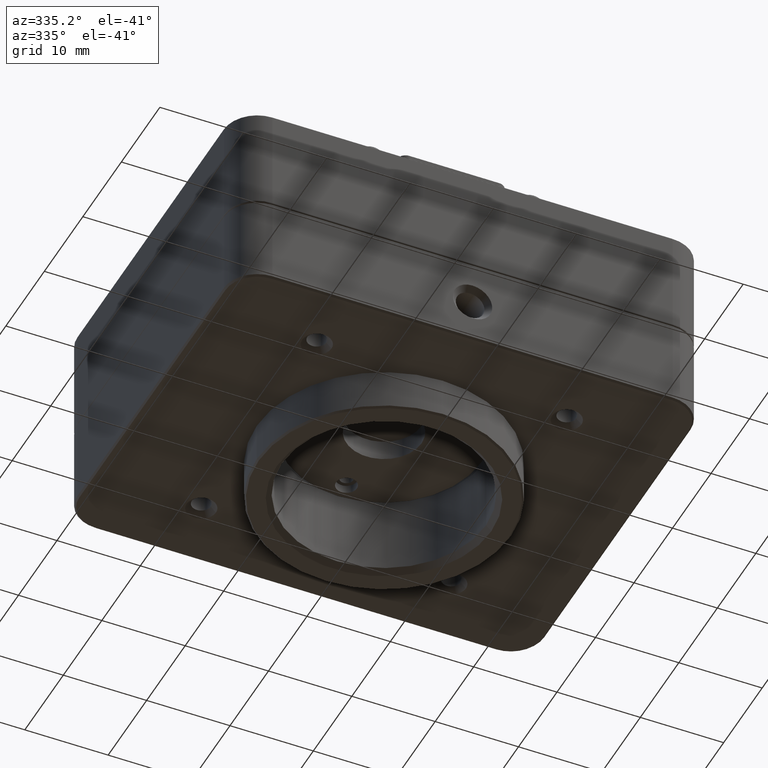
[diagram: clean part render]
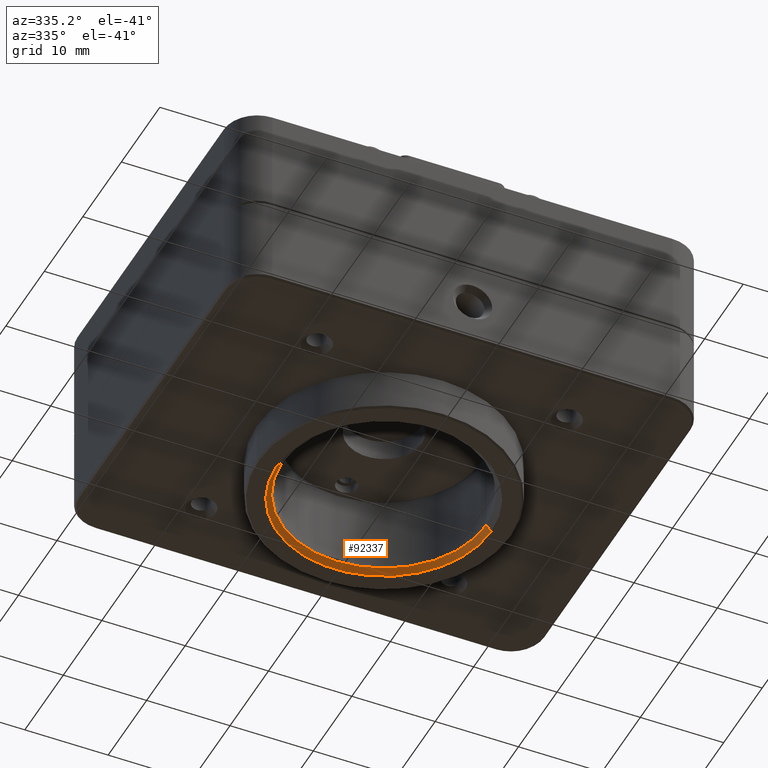
[diagram: same view with one face highlighted and labeled with its STEP entity id]
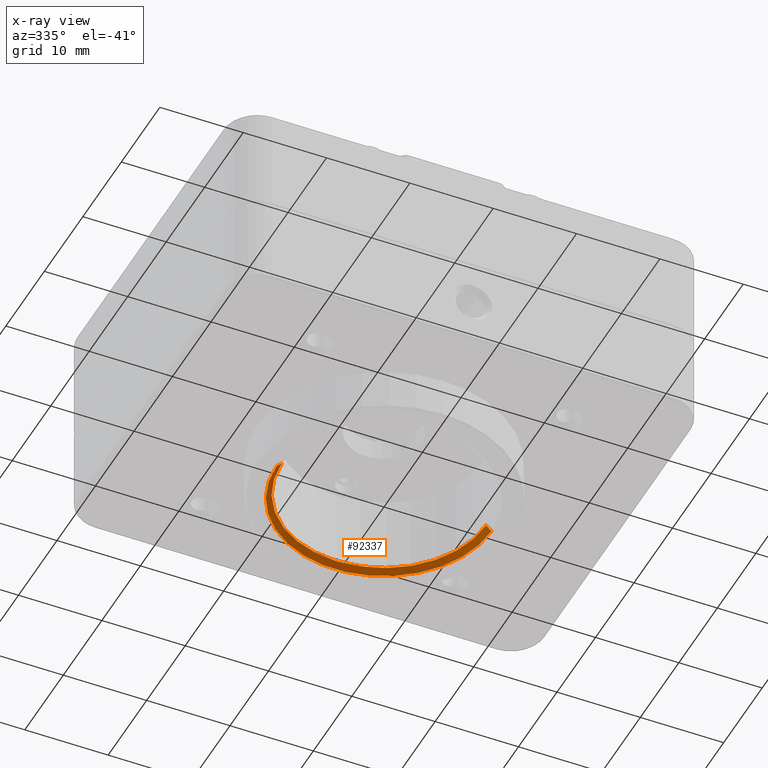
[diagram: x-ray of the same camera — body ghosted, the highlighted face saturated]
A machine part, auxiliary view. The second image highlights one B-rep face of the part: STEP entity #92337.
The next image is the same camera in x-ray: the body ghosted, the highlighted face saturated — about 0% of this face is hidden behind the body in this view.
In plain terms, the highlighted conical surface has half-angle 45 deg.
Its self-contained STEP definition (entity closure, byte-faithful):
#7618 = CIRCLE ( 'NONE', #52536, 12.88415000000000200 ) ;
#8780 = DIRECTION ( 'NONE',  ( 0.7071067811865474600, -4.954604440663003500E-019, -0.7071067811865474600 ) ) ;
#12704 = VECTOR ( 'NONE', #52499, 1000.000000000000100 ) ;
#13880 = ORIENTED_EDGE ( 'NONE', *, *, #44311, .F. ) ;
#19018 = VERTEX_POINT ( 'NONE', #27464 ) ;
#26970 = DIRECTION ( 'NONE',  ( -1.000000000000000000, 1.231653667943532800E-016, -2.200476494760063700E-045 ) ) ;
#27464 = CARTESIAN_POINT ( 'NONE',  ( -12.24914999999999800, 1.074990183674850500E-015, 0.6350000000000035600 ) ) ;
#30289 = CIRCLE ( 'NONE', #105635, 12.24914999999999800 ) ;
#30393 = VERTEX_POINT ( 'NONE', #75861 ) ;
#31390 = ORIENTED_EDGE ( 'NONE', *, *, #69771, .T. ) ;
#34843 = DIRECTION ( 'NONE',  ( 3.284293275761290000E-047, 8.495371939969203500E-045, -1.000000000000000000 ) ) ;
#39922 = LINE ( 'NONE', #99623, #83559 ) ;
#42448 = DIRECTION ( 'NONE',  ( 3.284293275761290000E-047, 8.495371939969203500E-045, -1.000000000000000000 ) ) ;
#44311 = EDGE_CURVE ( 'NONE', #30393, #78905, #7618, .T. ) ;
#46125 = DIRECTION ( 'NONE',  ( -3.284293275761290000E-047, -8.495371939969203500E-045, 1.000000000000000000 ) ) ;
#51410 = ORIENTED_EDGE ( 'NONE', *, *, #89661, .F. ) ;
#52499 = DIRECTION ( 'NONE',  ( -0.7071067811865474600, 8.709106606761562400E-017, -0.7071067811865474600 ) ) ;
#52536 = AXIS2_PLACEMENT_3D ( 'NONE', #95369, #46125, #103602 ) ;
#56526 = VERTEX_POINT ( 'NONE', #81866 ) ;
#59473 = AXIS2_PLACEMENT_3D ( 'NONE', #67518, #34843, #26970 ) ;
#60838 = EDGE_LOOP ( 'NONE', ( #99343, #51410, #31390, #13880 ) ) ;
#67518 = CARTESIAN_POINT ( 'NONE',  ( 0.0000000000000000000, -4.336808689942017700E-016, 0.0000000000000000000 ) ) ;
#68817 = FACE_OUTER_BOUND ( 'NONE', #60838, .T. ) ;
#69771 = EDGE_CURVE ( 'NONE', #19018, #78905, #100088, .T. ) ;
#75861 = CARTESIAN_POINT ( 'NONE',  ( 12.88415000000000200, -4.427086238542315000E-016, 4.231532720889964800E-046 ) ) ;
#78905 = VERTEX_POINT ( 'NONE', #92525 ) ;
#80962 = EDGE_CURVE ( 'NONE', #56526, #30393, #39922, .T. ) ;
#81866 = CARTESIAN_POINT ( 'NONE',  ( 12.24914999999999500, -4.422636876856740300E-016, 0.6350000000000035600 ) ) ;
#83559 = VECTOR ( 'NONE', #8780, 1000.000000000000100 ) ;
#89661 = EDGE_CURVE ( 'NONE', #19018, #56526, #30289, .T. ) ;
#91693 = CARTESIAN_POINT ( 'NONE',  ( 0.0000000000000000000, -4.336808689942017700E-016, 0.6350000000000035600 ) ) ;
#92337 = ADVANCED_FACE ( 'NONE', ( #68817 ), #102269, .F. ) ;
#92525 = CARTESIAN_POINT ( 'NONE',  ( -12.88415000000000200, 1.153200191589265300E-015, -4.231532720889867500E-046 ) ) ;
#93450 = CARTESIAN_POINT ( 'NONE',  ( -12.88415000000000200, 1.153200191589265300E-015, -2.835126922996288000E-044 ) ) ;
#95369 = CARTESIAN_POINT ( 'NONE',  ( 0.0000000000000000000, -4.336808689942017700E-016, 0.0000000000000000000 ) ) ;
#99343 = ORIENTED_EDGE ( 'NONE', *, *, #80962, .F. ) ;
#99623 = CARTESIAN_POINT ( 'NONE',  ( 12.88415000000000200, -4.427086238542315000E-016, 2.835126922996289000E-044 ) ) ;
#99900 = DIRECTION ( 'NONE',  ( -1.000000000000000000, 1.231653667943532800E-016, 0.0000000000000000000 ) ) ;
#100088 = LINE ( 'NONE', #93450, #12704 ) ;
#102269 = CONICAL_SURFACE ( 'NONE', #59473, 12.88415000000000200, 0.7853981633974482800 ) ;
#103602 = DIRECTION ( 'NONE',  ( -1.000000000000000000, 1.231653667943532800E-016, -2.200476494760063700E-045 ) ) ;
#105635 = AXIS2_PLACEMENT_3D ( 'NONE', #91693, #42448, #99900 ) ;